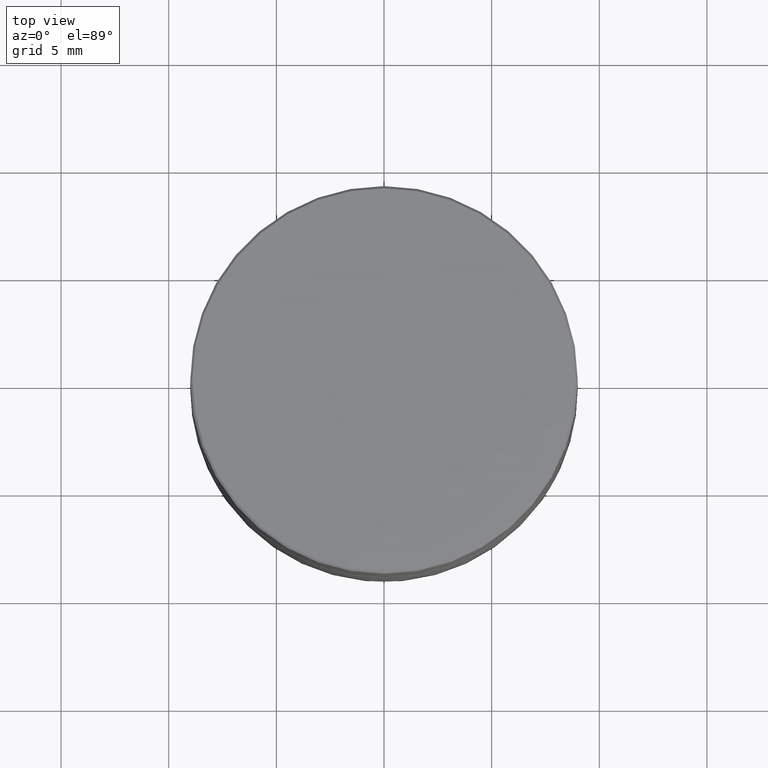
[diagram: clean part render]
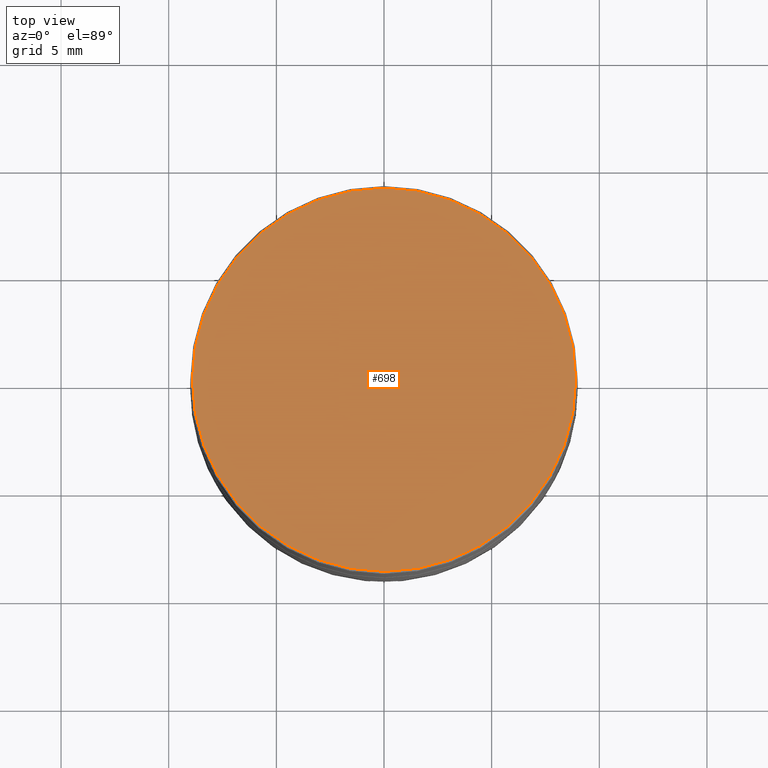
[diagram: same view with one face highlighted and labeled with its STEP entity id]
A machine part, top view. The second image highlights one B-rep face of the part: STEP entity #698.
In plain terms, the highlighted planar face has unit normal (0, -0, 1).
Its self-contained STEP definition (entity closure, byte-faithful):
#264 = DIRECTION ( 'NONE',  ( 1.000000000000000000, 0.000000000000000000, 0.000000000000000000 ) ) ;
#328 = DIRECTION ( 'NONE',  ( 1.000000000000000000, 0.000000000000000000, 0.000000000000000000 ) ) ;
#384 = CIRCLE ( 'NONE', #1095, 8.900000000000009237 ) ;
#465 = AXIS2_PLACEMENT_3D ( 'NONE', #712, #1335, #1075 ) ;
#540 = CARTESIAN_POINT ( 'NONE',  ( -8.900000000000009237, 0.000000000000000000, 0.000000000000000000 ) ) ;
#684 = CARTESIAN_POINT ( 'NONE',  ( 8.900000000000009237, 1.096058885236881233E-15, 0.000000000000000000 ) ) ;
#698 = ADVANCED_FACE ( 'NONE', ( #1003 ), #1514, .T. ) ;
#712 = CARTESIAN_POINT ( 'NONE',  ( 0.000000000000000000, 0.000000000000000000, 0.000000000000000000 ) ) ;
#755 = DIRECTION ( 'NONE',  ( 0.000000000000000000, -0.000000000000000000, 1.000000000000000000 ) ) ;
#761 = ORIENTED_EDGE ( 'NONE', *, *, #1017, .T. ) ;
#877 = CARTESIAN_POINT ( 'NONE',  ( 0.000000000000000000, 0.000000000000000000, 0.000000000000000000 ) ) ;
#975 = ORIENTED_EDGE ( 'NONE', *, *, #1042, .T. ) ;
#1003 = FACE_OUTER_BOUND ( 'NONE', #1548, .T. ) ;
#1017 = EDGE_CURVE ( 'NONE', #1516, #1278, #384, .T. ) ;
#1042 = EDGE_CURVE ( 'NONE', #1278, #1516, #1141, .T. ) ;
#1075 = DIRECTION ( 'NONE',  ( 1.000000000000000000, 0.000000000000000000, 0.000000000000000000 ) ) ;
#1095 = AXIS2_PLACEMENT_3D ( 'NONE', #1594, #1361, #328 ) ;
#1141 = CIRCLE ( 'NONE', #465, 8.900000000000009237 ) ;
#1278 = VERTEX_POINT ( 'NONE', #540 ) ;
#1335 = DIRECTION ( 'NONE',  ( -0.000000000000000000, -0.000000000000000000, 1.000000000000000000 ) ) ;
#1361 = DIRECTION ( 'NONE',  ( -0.000000000000000000, -0.000000000000000000, 1.000000000000000000 ) ) ;
#1438 = AXIS2_PLACEMENT_3D ( 'NONE', #877, #755, #264 ) ;
#1514 = PLANE ( 'NONE',  #1438 ) ;
#1516 = VERTEX_POINT ( 'NONE', #684 ) ;
#1548 = EDGE_LOOP ( 'NONE', ( #975, #761 ) ) ;
#1594 = CARTESIAN_POINT ( 'NONE',  ( 0.000000000000000000, 0.000000000000000000, 0.000000000000000000 ) ) ;